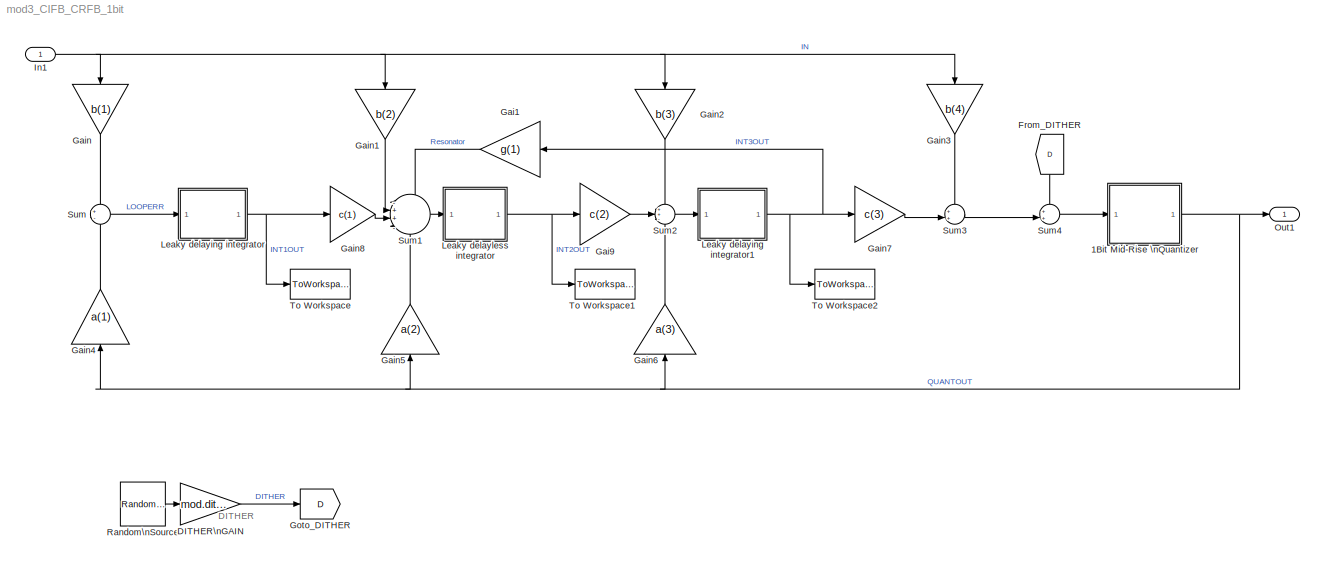
MODEL mod3_CIFB_CRFB_1bit
KIND model
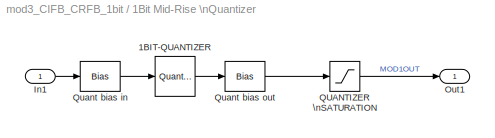
BLOCK [SubSystem] 1Bit Mid-Rise \nQuantizer
  FunctionWithSeparateData = off
  MaskHideContents = off
  MinAlgLoopOccurrences = off
  Opaque = off
  Ports = [1, 1]
  PropExecContextOutsideSubsystem = off
  RTWSystemCode = Auto
  RequestExecContextInheritance = off
  SID = 274
BLOCK [Quantizer] 1Bit Mid-Rise \nQuantizer/1BIT-QUANTIZER
  AttributesFormatString = step = 2
  LinearizeAsGain = off
  QuantizationInterval = 2
  SID = 276
  SampleTime = 1/Fs
BLOCK [Inport] 1Bit Mid-Rise \nQuantizer/In1
  IconDisplay = Port number
  SID = 275
BLOCK [Outport] 1Bit Mid-Rise \nQuantizer/Out1
  IconDisplay = Port number
  SID = 280
BLOCK [Saturate] 1Bit Mid-Rise \nQuantizer/QUANTIZER \nSATURATION
  AttributesFormatString = Limit quantizer\\noutput
  InputPortMap = u0
  LowerLimit = -(mod.qsatout1)
  Ports = [1, 1]
  SID = 277
  UpperLimit = mod.qsatout1
BLOCK [Bias] 1Bit Mid-Rise \nQuantizer/Quant bias in
  AttributesFormatString = Need offset to give\\nMID-RISE quantiser
  Bias = 1
  SID = 278
  SaturateOnIntegerOverflow = off
BLOCK [Bias] 1Bit Mid-Rise \nQuantizer/Quant bias out
  AttributesFormatString = Shift outputs to\\n..., -2, 1, 1, ...
  Bias = -1
  SID = 279
  SaturateOnIntegerOverflow = off
BLOCK [Gain] DITHER\nGAIN
  Gain = mod.dither
  OutDataTypeStr = Inherit: Inherit via internal rule
  ParamDataTypeStr = Inherit: Inherit via internal rule
  SID = 281
  SampleTime = 1/Fs
  SaturateOnIntegerOverflow = off
BLOCK [From] From_DITHER
  GotoTag = D
  SID = 285
BLOCK [Gain] Gai1
  Gain = g(1)
  OutDataTypeStr = Inherit: Inherit via internal rule
  ParamDataTypeStr = Inherit: Inherit via internal rule
  SID = 132
  SaturateOnIntegerOverflow = off
BLOCK [Gain] Gai9
  Gain = c(2)
  OutDataTypeStr = Inherit: Inherit via internal rule
  ParamDataTypeStr = Inherit: Inherit via internal rule
  SID = 130
  SaturateOnIntegerOverflow = off
BLOCK [Gain] Gain
  Gain = b(1)
  OutDataTypeStr = Inherit: Inherit via internal rule
  ParamDataTypeStr = Inherit: Inherit via internal rule
  SID = 121
  SaturateOnIntegerOverflow = off
BLOCK [Gain] Gain1
  Gain = b(2)
  OutDataTypeStr = Inherit: Inherit via internal rule
  ParamDataTypeStr = Inherit: Inherit via internal rule
  SID = 122
  SaturateOnIntegerOverflow = off
BLOCK [Gain] Gain2
  Gain = b(3)
  OutDataTypeStr = Inherit: Inherit via internal rule
  ParamDataTypeStr = Inherit: Inherit via internal rule
  SID = 123
  SaturateOnIntegerOverflow = off
BLOCK [Gain] Gain3
  Gain = b(4)
  OutDataTypeStr = Inherit: Inherit via internal rule
  ParamDataTypeStr = Inherit: Inherit via internal rule
  SID = 124
  SaturateOnIntegerOverflow = off
BLOCK [Gain] Gain4
  Gain = a(1)
  OutDataTypeStr = Inherit: Inherit via internal rule
  ParamDataTypeStr = Inherit: Inherit via internal rule
  SID = 125
  SaturateOnIntegerOverflow = off
BLOCK [Gain] Gain5
  Gain = a(2)
  OutDataTypeStr = Inherit: Inherit via internal rule
  ParamDataTypeStr = Inherit: Inherit via internal rule
  SID = 126
  SaturateOnIntegerOverflow = off
BLOCK [Gain] Gain6
  Gain = a(3)
  OutDataTypeStr = Inherit: Inherit via internal rule
  ParamDataTypeStr = Inherit: Inherit via internal rule
  SID = 127
  SaturateOnIntegerOverflow = off
BLOCK [Gain] Gain7
  Gain = c(3)
  OutDataTypeStr = Inherit: Inherit via internal rule
  ParamDataTypeStr = Inherit: Inherit via internal rule
  SID = 131
  SaturateOnIntegerOverflow = off
BLOCK [Gain] Gain8
  Gain = c(1)
  OutDataTypeStr = Inherit: Inherit via internal rule
  ParamDataTypeStr = Inherit: Inherit via internal rule
  SID = 129
  SaturateOnIntegerOverflow = off
BLOCK [Goto] Goto_DITHER
  GotoTag = D
  SID = 282
BLOCK [Inport] In1
  IconDisplay = Port number
  SID = 73
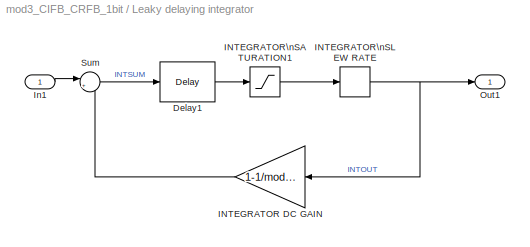
BLOCK [SubSystem] Leaky delaying integrator
  FunctionWithSeparateData = off
  MaskHideContents = off
  MinAlgLoopOccurrences = off
  Opaque = off
  Ports = [1, 1]
  PropExecContextOutsideSubsystem = off
  RTWSystemCode = Auto
  RequestExecContextInheritance = off
  SID = 216
BLOCK [Reference] Leaky delaying integrator/Delay1  REF=dspsigops/Delay
  InputProcessing = Inherited (this choice will be removed - see release notes)
  Ports = [1, 1]
  SID = 218
  SourceBlock = dspsigops/Delay
  SourceType = Delay
  UserData = DataTag0
  UserDataPersistent = on
  delay = 1
  dif_ic_for_ch = off
  dif_ic_for_dly = off
  dly_unit = Samples
  ic = 0
  ic_detail = off
  reset_popup = None
BLOCK [Gain] Leaky delaying integrator/INTEGRATOR DC GAIN
  AttributesFormatString = Integrator leakage\\n(model finite integrator dc/LF\\ngain in analog modulators)
  Gain = 1-1/mod.igain2
  OutDataTypeStr = Inherit: Inherit via internal rule
  ParamDataTypeStr = Inherit: Inherit via internal rule
  SID = 257
  SaturateOnIntegerOverflow = off
BLOCK [Saturate] Leaky delaying integrator/INTEGRATOR\nSATURATION1
  InputPortMap = u0
  LowerLimit = -(mod.isat2)
  Ports = [1, 1]
  SID = 256
  UpperLimit = mod.isat2
BLOCK [RateLimiter] Leaky delaying integrator/INTEGRATOR\nSLEW RATE
  FallingSlewLimit = -(mod.isr1)
  RisingSlewLimit = mod.isr1
  SID = 255
  SampleTimeMode = inherited
BLOCK [Inport] Leaky delaying integrator/In1
  IconDisplay = Port number
  SID = 217
BLOCK [Outport] Leaky delaying integrator/Out1
  IconDisplay = Port number
  SID = 222
BLOCK [Sum] Leaky delaying integrator/Sum
  AttributesFormatString = Integrator summer
  IconShape = round
  InputSameDT = off
  Inputs = |++
  OutDataTypeStr = Inherit: Inherit via internal rule
  Ports = [2, 1]
  SID = 221
  SaturateOnIntegerOverflow = off
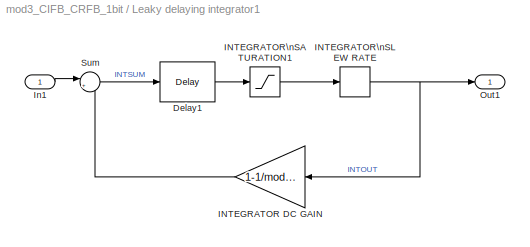
BLOCK [SubSystem] Leaky delaying integrator1
  FunctionWithSeparateData = off
  MaskHideContents = off
  MinAlgLoopOccurrences = off
  Opaque = off
  Ports = [1, 1]
  PropExecContextOutsideSubsystem = off
  RTWSystemCode = Auto
  RequestExecContextInheritance = off
  SID = 258
BLOCK [Reference] Leaky delaying integrator1/Delay1  REF=dspsigops/Delay
  InputProcessing = Inherited (this choice will be removed - see release notes)
  Ports = [1, 1]
  SID = 260
  SourceBlock = dspsigops/Delay
  SourceType = Delay
  UserData = DataTag1
  UserDataPersistent = on
  delay = 1
  dif_ic_for_ch = off
  dif_ic_for_dly = off
  dly_unit = Samples
  ic = 0
  ic_detail = off
  reset_popup = None
BLOCK [Gain] Leaky delaying integrator1/INTEGRATOR DC GAIN
  AttributesFormatString = Integrator leakage\\n(model finite integrator dc/LF\\ngain in analog modulators)
  Gain = 1-1/mod.igain2
  OutDataTypeStr = Inherit: Inherit via internal rule
  ParamDataTypeStr = Inherit: Inherit via internal rule
  SID = 263
  SaturateOnIntegerOverflow = off
BLOCK [Saturate] Leaky delaying integrator1/INTEGRATOR\nSATURATION1
  InputPortMap = u0
  LowerLimit = -(mod.isat2)
  Ports = [1, 1]
  SID = 261
  UpperLimit = mod.isat2
BLOCK [RateLimiter] Leaky delaying integrator1/INTEGRATOR\nSLEW RATE
  FallingSlewLimit = -(mod.isr1)
  RisingSlewLimit = mod.isr1
  SID = 262
  SampleTimeMode = inherited
BLOCK [Inport] Leaky delaying integrator1/In1
  IconDisplay = Port number
  SID = 259
BLOCK [Outport] Leaky delaying integrator1/Out1
  IconDisplay = Port number
  SID = 265
BLOCK [Sum] Leaky delaying integrator1/Sum
  AttributesFormatString = Integrator summer
  IconShape = round
  InputSameDT = off
  Inputs = |++
  OutDataTypeStr = Inherit: Inherit via internal rule
  Ports = [2, 1]
  SID = 264
  SaturateOnIntegerOverflow = off
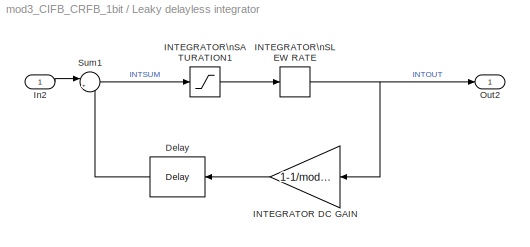
BLOCK [SubSystem] Leaky delayless integrator
  FunctionWithSeparateData = off
  MaskHideContents = off
  MinAlgLoopOccurrences = off
  Opaque = off
  Ports = [1, 1]
  PropExecContextOutsideSubsystem = off
  RTWSystemCode = Auto
  RequestExecContextInheritance = off
  SID = 237
BLOCK [Reference] Leaky delayless integrator/Delay  REF=dspsigops/Delay
  InputProcessing = Inherited (this choice will be removed - see release notes)
  Ports = [1, 1]
  SID = 273
  SourceBlock = dspsigops/Delay
  SourceType = Delay
  UserData = DataTag2
  UserDataPersistent = on
  delay = 1
  dif_ic_for_ch = off
  dif_ic_for_dly = off
  dly_unit = Samples
  ic = 0
  ic_detail = off
  reset_popup = None
BLOCK [Gain] Leaky delayless integrator/INTEGRATOR DC GAIN
  AttributesFormatString = Integrator leakage\\n(model finite integrator dc/LF\\ngain in analog modulators)
  Gain = 1-1/mod.igain2
  OutDataTypeStr = Inherit: Inherit via internal rule
  ParamDataTypeStr = Inherit: Inherit via internal rule
  SID = 270
  SaturateOnIntegerOverflow = off
BLOCK [Saturate] Leaky delayless integrator/INTEGRATOR\nSATURATION1
  InputPortMap = u0
  LowerLimit = -(mod.isat2)
  Ports = [1, 1]
  SID = 268
  UpperLimit = mod.isat2
BLOCK [RateLimiter] Leaky delayless integrator/INTEGRATOR\nSLEW RATE
  FallingSlewLimit = -(mod.isr1)
  RisingSlewLimit = mod.isr1
  SID = 269
  SampleTimeMode = inherited
BLOCK [Inport] Leaky delayless integrator/In2
  IconDisplay = Port number
  SID = 266
BLOCK [Outport] Leaky delayless integrator/Out2
  IconDisplay = Port number
  SID = 272
BLOCK [Sum] Leaky delayless integrator/Sum1
  AttributesFormatString = Integrator summer
  IconShape = round
  InputSameDT = off
  Inputs = |++
  OutDataTypeStr = Inherit: Inherit via internal rule
  Ports = [2, 1]
  SID = 271
  SaturateOnIntegerOverflow = off
BLOCK [Outport] Out1
  IconDisplay = Port number
  SID = 74
BLOCK [Reference] Random\nSource  REF=dspsrcs4/Random\nSource
  CltLength = 12
  DataType = Double
  IsInherit = off
  MaxVal = 1
  MeanVal = 0
  MinVal = -1
  NormMethod = Ziggurat
  OutComplex = Real
  Ports = [0, 1]
  RepMode = Not repeatable
  SID = 283
  SampFrame = 1
  SampMode = Discrete
  SampTime = 1/Fs
  SourceBlock = dspsrcs4/Random\nSource
  SourceType = Random Source
  SrcType = Uniform
  UserData = DataTag3
  UserDataPersistent = on
  VarVal = 1
  rawSeed = 1
BLOCK [Sum] Sum
  IconShape = round
  InputSameDT = off
  Inputs = +-
  OutDataTypeStr = Inherit: Inherit via internal rule
  Ports = [2, 1]
  SID = 115
  SampleTime = 1/Fs
  SaturateOnIntegerOverflow = off
BLOCK [Sum] Sum1
  IconShape = round
  InputSameDT = off
  Inputs = -++|-
  OutDataTypeStr = Inherit: Inherit via internal rule
  Ports = [4, 1]
  SID = 116
  SampleTime = 1/Fs
  SaturateOnIntegerOverflow = off
BLOCK [Sum] Sum2
  IconShape = round
  InputSameDT = off
  Inputs = ++-
  OutDataTypeStr = Inherit: Inherit via internal rule
  Ports = [3, 1]
  SID = 117
  SampleTime = 1/Fs
  SaturateOnIntegerOverflow = off
BLOCK [Sum] Sum3
  IconShape = round
  InputSameDT = off
  Inputs = ++|
  OutDataTypeStr = Inherit: Inherit via internal rule
  Ports = [2, 1]
  SID = 118
  SampleTime = 1/Fs
  SaturateOnIntegerOverflow = off
BLOCK [Sum] Sum4
  IconShape = round
  InputSameDT = off
  Inputs = ++|
  OutDataTypeStr = Inherit: Inherit via internal rule
  Ports = [2, 1]
  SID = 286
  SaturateOnIntegerOverflow = off
BLOCK [ToWorkspace] To Workspace
  MaxDataPoints = inf
  Ports = [1]
  SID = 244
  SampleTime = -1
  VariableName = INT1OUT
BLOCK [ToWorkspace] To Workspace1
  MaxDataPoints = inf
  Ports = [1]
  SID = 245
  SampleTime = -1
  VariableName = INT2OUT
BLOCK [ToWorkspace] To Workspace2
  MaxDataPoints = inf
  Ports = [1]
  SID = 246
  SampleTime = -1
  VariableName = INT3OUT
ANNOTATION (root): DITHER \n\n\n\n\n\n
LINE 1Bit Mid-Rise \nQuantizer/1BIT-QUANTIZER:1 -> 1Bit Mid-Rise \nQuantizer/Quant bias out:1
LINE 1Bit Mid-Rise \nQuantizer/In1:1 -> 1Bit Mid-Rise \nQuantizer/Quant bias in:1
LINE 1Bit Mid-Rise \nQuantizer/QUANTIZER \nSATURATION:1 -> 1Bit Mid-Rise \nQuantizer/Out1:1
LINE 1Bit Mid-Rise \nQuantizer/Quant bias in:1 -> 1Bit Mid-Rise \nQuantizer/1BIT-QUANTIZER:1
LINE 1Bit Mid-Rise \nQuantizer/Quant bias out:1 -> 1Bit Mid-Rise \nQuantizer/QUANTIZER \nSATURATION:1
NET 1Bit Mid-Rise \nQuantizer:1 -> Gain4:1, Gain5:1, Gain6:1, Out1:1
LINE DITHER\nGAIN:1 -> Goto_DITHER:1
LINE From_DITHER:1 -> Sum4:1
LINE Gai1:1 -> Sum1:1
LINE Gai9:1 -> Sum2:2
LINE Gain1:1 -> Sum1:2
LINE Gain2:1 -> Sum2:1
LINE Gain3:1 -> Sum3:1
LINE Gain4:1 -> Sum:2
LINE Gain5:1 -> Sum1:4
LINE Gain6:1 -> Sum2:3
LINE Gain7:1 -> Sum3:2
LINE Gain8:1 -> Sum1:3
LINE Gain:1 -> Sum:1
NET In1:1 -> Gain1:1, Gain2:1, Gain3:1, Gain:1
LINE Leaky delaying integrator/Delay1:1 -> Leaky delaying integrator/INTEGRATOR\nSATURATION1:1
LINE Leaky delaying integrator/INTEGRATOR DC GAIN:1 -> Leaky delaying integrator/Sum:2
LINE Leaky delaying integrator/INTEGRATOR\nSATURATION1:1 -> Leaky delaying integrator/INTEGRATOR\nSLEW RATE:1
NET Leaky delaying integrator/INTEGRATOR\nSLEW RATE:1 -> Leaky delaying integrator/INTEGRATOR DC GAIN:1, Leaky delaying integrator/Out1:1
LINE Leaky delaying integrator/In1:1 -> Leaky delaying integrator/Sum:1
LINE Leaky delaying integrator/Sum:1 -> Leaky delaying integrator/Delay1:1
LINE Leaky delaying integrator1/Delay1:1 -> Leaky delaying integrator1/INTEGRATOR\nSATURATION1:1
LINE Leaky delaying integrator1/INTEGRATOR DC GAIN:1 -> Leaky delaying integrator1/Sum:2
LINE Leaky delaying integrator1/INTEGRATOR\nSATURATION1:1 -> Leaky delaying integrator1/INTEGRATOR\nSLEW RATE:1
NET Leaky delaying integrator1/INTEGRATOR\nSLEW RATE:1 -> Leaky delaying integrator1/INTEGRATOR DC GAIN:1, Leaky delaying integrator1/Out1:1
LINE Leaky delaying integrator1/In1:1 -> Leaky delaying integrator1/Sum:1
LINE Leaky delaying integrator1/Sum:1 -> Leaky delaying integrator1/Delay1:1
NET Leaky delaying integrator1:1 -> Gai1:1, Gain7:1, To Workspace2:1
NET Leaky delaying integrator:1 -> Gain8:1, To Workspace:1
LINE Leaky delayless integrator/Delay:1 -> Leaky delayless integrator/Sum1:2
LINE Leaky delayless integrator/INTEGRATOR DC GAIN:1 -> Leaky delayless integrator/Delay:1
LINE Leaky delayless integrator/INTEGRATOR\nSATURATION1:1 -> Leaky delayless integrator/INTEGRATOR\nSLEW RATE:1
NET Leaky delayless integrator/INTEGRATOR\nSLEW RATE:1 -> Leaky delayless integrator/INTEGRATOR DC GAIN:1, Leaky delayless integrator/Out2:1
LINE Leaky delayless integrator/In2:1 -> Leaky delayless integrator/Sum1:1
LINE Leaky delayless integrator/Sum1:1 -> Leaky delayless integrator/INTEGRATOR\nSATURATION1:1
NET Leaky delayless integrator:1 -> Gai9:1, To Workspace1:1
LINE Random\nSource:1 -> DITHER\nGAIN:1
LINE Sum1:1 -> Leaky delayless integrator:1
LINE Sum2:1 -> Leaky delaying integrator1:1
LINE Sum3:1 -> Sum4:2
LINE Sum4:1 -> 1Bit Mid-Rise \nQuantizer:1
LINE Sum:1 -> Leaky delaying integrator:1
note: NET lines group one-source signal fan-out (src -> all destinations, sorted); 1:1 wires keep LINE
